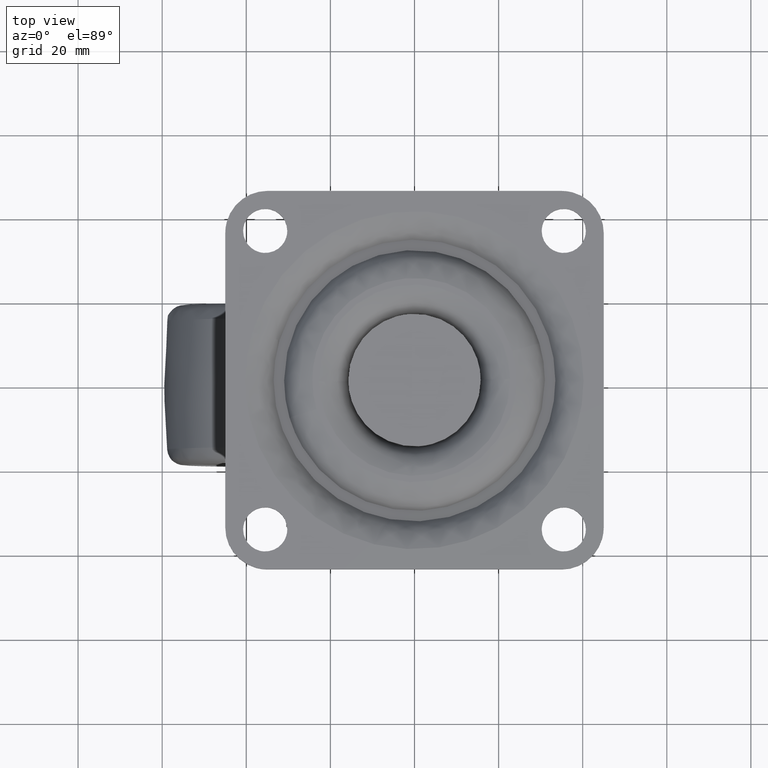
[diagram: clean part render]
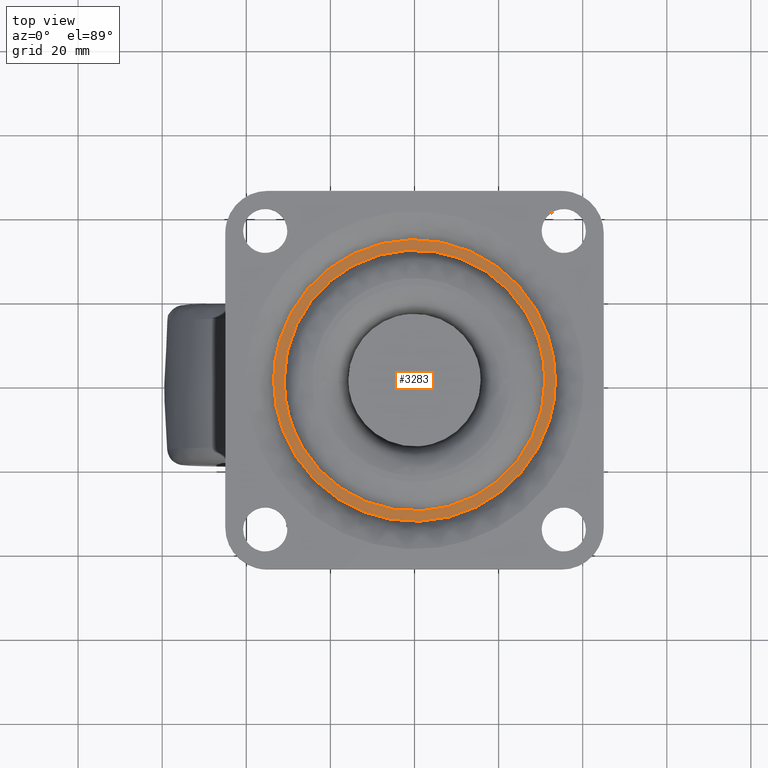
[diagram: same view with one face highlighted and labeled with its STEP entity id]
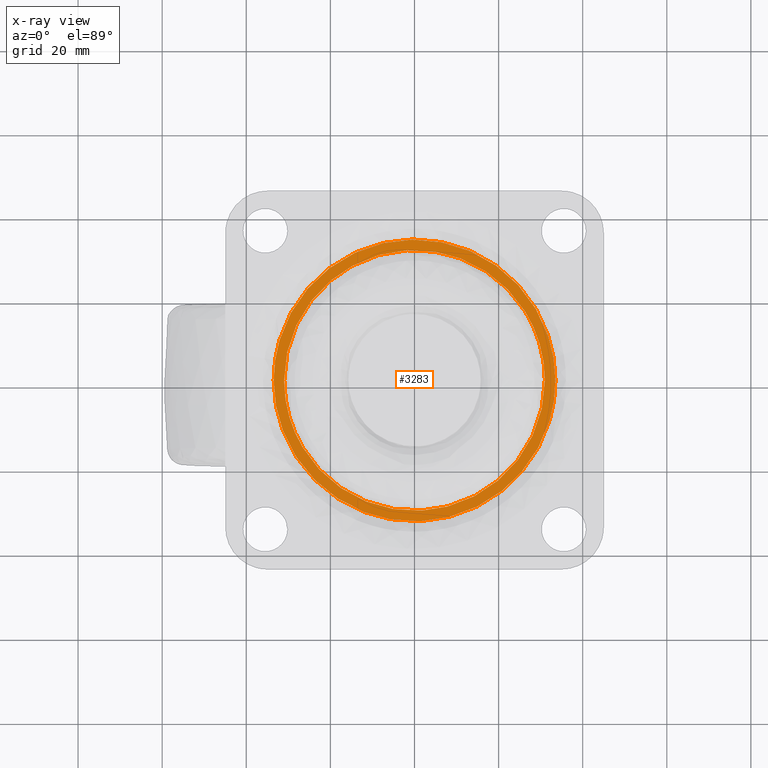
[diagram: x-ray of the same camera — body ghosted, the highlighted face saturated]
A machine part, top view. The second image highlights one B-rep face of the part: STEP entity #3283.
The next image is the same camera in x-ray: the body ghosted, the highlighted face saturated — about 0% of this face is hidden behind the body in this view.
In plain terms, the highlighted face is a freeform B-spline surface patch.
Its self-contained STEP definition (entity closure, byte-faithful):
#3093=CARTESIAN_POINT('',(36.846649870141000,-36.808252760960222,-5.000000000000100));
#3094=CARTESIAN_POINT('',(-36.846651667221039,-36.808252760960222,-5.000000000000100));
#3095=CARTESIAN_POINT('',(36.846649870141000,36.808250963883367,-5.000000000000100));
#3096=CARTESIAN_POINT('',(-36.846651667221039,36.808250963883367,-5.000000000000100));
#3097=B_SPLINE_SURFACE_WITH_KNOTS('',1,1,((#3093,#3095),(#3094,#3096)),.UNSPECIFIED.,.F.,.F.,.U.,(2,2),(2,2),(0.0,73.693301537362032),(0.0,73.616503724843597),.UNSPECIFIED.);
#3098=CARTESIAN_POINT('',(32.110479932221573,-9.548145292803506,-4.999999999494990));
#3099=VERTEX_POINT('',#3098);
#3100=CARTESIAN_POINT('',(-33.500000000000000,0.0,-5.000000000000101));
#3101=VERTEX_POINT('',#3100);
#3102=CARTESIAN_POINT('',(32.110479932221573,-9.548145292803506,-4.999999999494990));
#3103=CARTESIAN_POINT('',(31.507832129050229,-11.575782569249929,-4.999999999497318));
#3104=CARTESIAN_POINT('',(30.010002624708150,-15.284282798870480,-4.999999999504504));
#3105=CARTESIAN_POINT('',(26.916022108440369,-20.197421637762758,-4.999999999522514));
#3106=CARTESIAN_POINT('',(23.682357038599740,-23.836969684851280,-4.999999999542793));
#3107=CARTESIAN_POINT('',(20.046494761285778,-26.966508278974850,-4.999999999566835));
#3108=CARTESIAN_POINT('',(16.332342103448742,-29.384011328257021,-4.999999999592089));
#3109=CARTESIAN_POINT('',(12.369465608069360,-31.211531452825810,-4.999999999620103));
#3110=CARTESIAN_POINT('',(8.168333762591850,-32.594118802477752,-4.999999999650107));
#3111=CARTESIAN_POINT('',(3.994858478149984,-33.371749208753158,-4.999999999680880));
#3112=CARTESIAN_POINT('',(-0.113516375176753,-33.556197074703071,-4.999999999711571));
#3113=CARTESIAN_POINT('',(-4.093049057741790,-33.335753644083532,-4.999999999741833));
#3114=CARTESIAN_POINT('',(-8.023829680532243,-32.628826021847253,-4.999999999772240));
#3115=CARTESIAN_POINT('',(-11.582345720838530,-31.482314398893909,-4.999999999800323));
#3116=CARTESIAN_POINT('',(-15.078677295233151,-30.000923687580851,-4.999999999828312));
#3117=CARTESIAN_POINT('',(-18.229280450158161,-28.217807383862979,-4.999999999854016));
#3118=CARTESIAN_POINT('',(-21.319289150373312,-25.901780978047341,-4.999999999879855));
#3119=CARTESIAN_POINT('',(-24.183473067905840,-23.312431136521472,-4.999999999904286));
#3120=CARTESIAN_POINT('',(-26.869837151554911,-20.189282375150061,-4.999999999927968));
#3121=CARTESIAN_POINT('',(-29.194114285050460,-16.571399275980930,-4.999999999949460));
#3122=CARTESIAN_POINT('',(-30.769514551688150,-13.388790387616231,-4.999999999964826));
#3123=CARTESIAN_POINT('',(-31.952286850525091,-10.240275737748590,-4.999999999977202));
#3124=CARTESIAN_POINT('',(-33.129578039818263,-5.847968152068157,-4.999999999990891));
#3125=CARTESIAN_POINT('',(-33.500440018267682,-2.364165370366678,-4.999999999997512));
#3126=CARTESIAN_POINT('',(-33.500000000000000,0.0,-5.000000000000101));
#3127=B_SPLINE_CURVE_WITH_KNOTS('',3,(#3102,#3103,#3104,#3105,#3106,#3107,#3108,#3109,#3110,#3111,#3112,#3113,#3114,#3115,#3116,#3117,#3118,#3119,#3120,#3121,#3122,#3123,#3124,#3125,#3126),.UNSPECIFIED.,.F.,.U.,(4,1,1,1,1,1,1,1,1,1,1,1,1,1,1,1,1,1,1,1,1,1,4),(0.000000077171080,6.345844059929249,11.945122446728501,17.357780441196599,20.903993992299458,26.316643845093861,30.609424321345202,33.969035353324692,39.568320014856319,43.301032191127817,46.287401958636117,51.513342544129912,55.246240902234419,57.485960822470318,62.898605486857178,66.071531257671793,69.057820083283701,74.470466493982670,78.389964583369533,81.936206277014051,85.109118628885966,88.468715613678867,95.561088930573177),.UNSPECIFIED.);
#3128=EDGE_CURVE('',#3099,#3101,#3127,.T.);
#3129=ORIENTED_EDGE('',*,*,#3128,.F.);
#3130=CARTESIAN_POINT('',(33.500000000000000,0.0,-5.000000000000100));
#3131=VERTEX_POINT('',#3130);
#3132=CARTESIAN_POINT('',(33.500000000000000,0.0,-5.000000000000100));
#3133=CARTESIAN_POINT('',(33.500000000072177,-4.875179508517898,-4.999999999747545));
#3134=CARTESIAN_POINT('',(32.110479932221565,-9.548145292803506,-4.999999999494990));
#3142=(BOUNDED_CURVE()B_SPLINE_CURVE(2,(#3132,#3133,#3134),.UNSPECIFIED.,.F.,.U.)B_SPLINE_CURVE_WITH_KNOTS((3,3),(0.500000000000000,0.548526662064572),.UNSPECIFIED.)CURVE()GEOMETRIC_REPRESENTATION_ITEM()RATIONAL_B_SPLINE_CURVE((1.0,0.943147478998539,0.908365862590333))REPRESENTATION_ITEM(''));
#3143=EDGE_CURVE('',#3131,#3099,#3142,.T.);
#3144=ORIENTED_EDGE('',*,*,#3143,.F.);
#3145=CARTESIAN_POINT('',(-32.110479932221573,9.548145292803511,-4.999999999494991));
#3146=VERTEX_POINT('',#3145);
#3147=CARTESIAN_POINT('',(-32.110479932221573,9.548145292803511,-4.999999999494991));
#3148=CARTESIAN_POINT('',(-31.738133893350629,10.800459673791130,-4.999999999496425));
#3149=CARTESIAN_POINT('',(-30.846638075861339,13.261425034208511,-4.999999999500449));
#3150=CARTESIAN_POINT('',(-28.808642347303561,17.328843613683109,-4.999999999511345));
#3151=CARTESIAN_POINT('',(-26.449695740863120,20.708439078892241,-4.999999999525432));
#3152=CARTESIAN_POINT('',(-23.611279530803650,23.849860007869911,-4.999999999543372));
#3153=CARTESIAN_POINT('',(-20.831435665591439,26.352651969110848,-4.999999999561603));
#3154=CARTESIAN_POINT('',(-17.600649826385531,28.585957757351309,-4.999999999583428));
#3155=CARTESIAN_POINT('',(-14.583607922232790,30.208411679150618,-4.999999999604506));
#3156=CARTESIAN_POINT('',(-11.320429308719270,31.604563465398911,-4.999999999627482));
#3157=CARTESIAN_POINT('',(-7.081039823584592,32.882952406373917,-4.999999999658120));
#3158=CARTESIAN_POINT('',(-2.379520584038597,33.530308849729039,-4.999999999692806));
#3159=CARTESIAN_POINT('',(2.480655292480103,33.504850219303457,-4.999999999729488));
#3160=CARTESIAN_POINT('',(7.116619826026851,32.869779561505268,-4.999999999765155));
#3161=CARTESIAN_POINT('',(11.662138894076190,31.516442930466120,-4.999999999800830));
#3162=CARTESIAN_POINT('',(15.351137229620621,29.842870909987500,-4.999999999830628));
#3163=CARTESIAN_POINT('',(18.469529237208771,28.020173917686439,-4.999999999855842));
#3164=CARTESIAN_POINT('',(21.939196405269939,25.479941727195001,-4.999999999885417));
#3165=CARTESIAN_POINT('',(25.315088096999450,22.142561565258781,-4.999999999913856));
#3166=CARTESIAN_POINT('',(28.247985631779851,18.186034635108399,-4.999999999940801));
#3167=CARTESIAN_POINT('',(30.549068106978361,14.043340064746090,-4.999999999962256));
#3168=CARTESIAN_POINT('',(32.107510057305433,9.894773304407034,-4.999999999978815));
#3169=CARTESIAN_POINT('',(33.221827789717047,5.101472674735708,-4.999999999992392));
#3170=CARTESIAN_POINT('',(33.500207969958957,1.990851227812985,-4.999999999997917));
#3171=CARTESIAN_POINT('',(33.500000000000000,0.0,-5.000000000000100));
#3172=B_SPLINE_CURVE_WITH_KNOTS('',3,(#3147,#3148,#3149,#3150,#3151,#3152,#3153,#3154,#3155,#3156,#3157,#3158,#3159,#3160,#3161,#3162,#3163,#3164,#3165,#3166,#3167,#3168,#3169,#3170,#3171),.UNSPECIFIED.,.F.,.U.,(4,1,1,1,1,1,1,1,1,1,1,1,1,1,1,1,1,1,1,1,1,1,4),(0.000000077160919,3.919491631081812,7.838995039964900,13.624912598592230,16.237921291382278,20.530718097351240,24.823493365762900,27.996427661298679,30.796079590931850,35.462135230934578,41.248062843504911,44.980823098908267,50.020193066817939,55.246240902230483,59.165738392891562,62.152036486182951,66.071531257670301,72.044106738695007,76.336912015711022,80.816315009477350,86.228967033420787,89.588577826054760,95.561088930573135),.UNSPECIFIED.);
#3173=EDGE_CURVE('',#3146,#3131,#3172,.T.);
#3174=ORIENTED_EDGE('',*,*,#3173,.F.);
#3175=CARTESIAN_POINT('',(-33.500000000000000,0.0,-5.000000000000101));
#3176=CARTESIAN_POINT('',(-33.500000000072177,4.875179508517900,-4.999999999747547));
#3177=CARTESIAN_POINT('',(-32.110479932221565,9.548145292803511,-4.999999999494991));
#3185=(BOUNDED_CURVE()B_SPLINE_CURVE(2,(#3175,#3176,#3177),.UNSPECIFIED.,.F.,.U.)B_SPLINE_CURVE_WITH_KNOTS((3,3),(0.0,0.048526662064572),.UNSPECIFIED.)CURVE()GEOMETRIC_REPRESENTATION_ITEM()RATIONAL_B_SPLINE_CURVE((1.0,0.943147478998539,0.908365862590333))REPRESENTATION_ITEM(''));
#3186=EDGE_CURVE('',#3101,#3146,#3185,.T.);
#3187=ORIENTED_EDGE('',*,*,#3186,.F.);
#3188=EDGE_LOOP('',(#3129,#3144,#3174,#3187));
#3189=FACE_OUTER_BOUND('',#3188,.T.);
#3190=CARTESIAN_POINT('',(-31.0,0.0,-5.000000000000098));
#3191=VERTEX_POINT('',#3190);
#3192=CARTESIAN_POINT('',(29.714187335718361,8.835565573032186,-5.000008007609557));
#3193=VERTEX_POINT('',#3192);
#3194=CARTESIAN_POINT('',(-31.0,0.0,-5.000000000000098));
#3195=CARTESIAN_POINT('',(-31.000309323351932,2.072592027183866,-5.000000038915688));
#3196=CARTESIAN_POINT('',(-30.704411733989300,5.008606103601647,-5.000000132316345));
#3197=CARTESIAN_POINT('',(-29.736317335152389,8.924234240025713,-5.000000330947044));
#3198=CARTESIAN_POINT('',(-28.763920083293890,11.699029776980771,-5.000000508690802));
#3199=CARTESIAN_POINT('',(-27.396886073534230,14.622849917024940,-5.000000740204968));
#3200=CARTESIAN_POINT('',(-25.824551709075461,17.243349314515552,-5.000000992533461));
#3201=CARTESIAN_POINT('',(-23.826526392807811,19.922903420014499,-5.000001300952204));
#3202=CARTESIAN_POINT('',(-21.319596820878338,22.632609268320969,-5.000001675665011));
#3203=CARTESIAN_POINT('',(-18.249100061522370,25.169382751621988,-5.000002119915110));
#3204=CARTESIAN_POINT('',(-14.730169795950051,27.373541455283860,-5.000002615830916));
#3205=CARTESIAN_POINT('',(-11.584798286108910,28.821543119188309,-5.000003049287298));
#3206=CARTESIAN_POINT('',(-8.197133828333190,29.954688564057658,-5.000003508119248));
#3207=CARTESIAN_POINT('',(-4.987879742719592,30.671433331567631,-5.000003936081844));
#3208=CARTESIAN_POINT('',(-1.602895165822132,31.010797644529060,-5.000004379648252));
#3209=CARTESIAN_POINT('',(2.258222068313600,31.009621618763742,-5.000004878308548));
#3210=CARTESIAN_POINT('',(6.268404874784483,30.480124808253692,-5.000005386291529));
#3211=CARTESIAN_POINT('',(10.369162933371280,29.293262614073239,-5.000005893617118));
#3212=CARTESIAN_POINT('',(13.925236311957301,27.783554730182541,-5.000006324525923));
#3213=CARTESIAN_POINT('',(17.172418388118359,25.906820450184711,-5.000006708641402));
#3214=CARTESIAN_POINT('',(20.341630433578789,23.500495251493501,-5.000007072732701));
#3215=CARTESIAN_POINT('',(22.856742779629510,21.038265360957510,-5.000007351293004));
#3216=CARTESIAN_POINT('',(25.225451302321041,18.136422625822629,-5.000007602681754));
#3217=CARTESIAN_POINT('',(27.687363962490739,14.299084788502290,-5.000007848525142));
#3218=CARTESIAN_POINT('',(29.090946812923040,10.932646191535079,-5.000007966530786));
#3219=CARTESIAN_POINT('',(29.714187335718361,8.835565573032186,-5.000008007609557));
#3220=B_SPLINE_CURVE_WITH_KNOTS('',3,(#3194,#3195,#3196,#3197,#3198,#3199,#3200,#3201,#3202,#3203,#3204,#3205,#3206,#3207,#3208,#3209,#3210,#3211,#3212,#3213,#3214,#3215,#3216,#3217,#3218,#3219),.UNSPECIFIED.,.F.,.U.,(4,1,1,1,1,1,1,1,1,1,1,1,1,1,1,1,1,1,1,1,1,1,1,4),(0.000000022189198,6.217692955382390,8.808429014755021,12.089995408517710,15.026114075356210,18.480430072292680,21.243851659831378,25.043580776107440,29.534169190411721,33.161163205725792,37.479025465040451,39.897055243089042,43.869468962704431,47.323777770125432,50.087114249357860,55.441273354977739,59.413684779915563,62.867994133072933,67.013124918734491,70.640133682209097,74.785282964522480,77.548715923231327,81.866563731405748,88.429699895481036),.UNSPECIFIED.);
#3221=EDGE_CURVE('',#3191,#3193,#3220,.T.);
#3222=ORIENTED_EDGE('',*,*,#3221,.T.);
#3223=CARTESIAN_POINT('',(31.0,0.0,-5.000000000000100));
#3224=VERTEX_POINT('',#3223);
#3225=CARTESIAN_POINT('',(29.714187335718361,8.835565573032186,-5.000008007609557));
#3226=CARTESIAN_POINT('',(31.000001144177869,4.511343306557842,-5.000004003804827));
#3227=CARTESIAN_POINT('',(31.0,0.0,-5.000000000000100));
#3235=(BOUNDED_CURVE()B_SPLINE_CURVE(2,(#3225,#3226,#3227),.UNSPECIFIED.,.F.,.U.)B_SPLINE_CURVE_WITH_KNOTS((3,3),(0.451473512184718,0.500000000000000),.UNSPECIFIED.)CURVE()GEOMETRIC_REPRESENTATION_ITEM()RATIONAL_B_SPLINE_CURVE((0.908366112377919,0.943147683144281,1.0))REPRESENTATION_ITEM(''));
#3236=EDGE_CURVE('',#3193,#3224,#3235,.T.);
#3237=ORIENTED_EDGE('',*,*,#3236,.T.);
#3238=CARTESIAN_POINT('',(-29.714187335718361,-8.835565573032184,-5.000008007609557));
#3239=VERTEX_POINT('',#3238);
#3240=CARTESIAN_POINT('',(31.0,0.0,-5.000000000000100));
#3241=CARTESIAN_POINT('',(31.000097979976250,-1.612001607126655,-5.000000030285947));
#3242=CARTESIAN_POINT('',(30.797442655699960,-4.202654802860815,-5.000000105152628));
#3243=CARTESIAN_POINT('',(29.936143500092470,-8.379855717405119,-5.000000294906597));
#3244=CARTESIAN_POINT('',(28.657879561557920,-12.093657906581610,-5.000000529803719));
#3245=CARTESIAN_POINT('',(26.974192523291080,-15.378849392212061,-5.000000809007322));
#3246=CARTESIAN_POINT('',(25.199242598522350,-18.141532061605869,-5.000001090177156));
#3247=CARTESIAN_POINT('',(22.982572226759501,-20.947796071898210,-5.000001429216477));
#3248=CARTESIAN_POINT('',(19.902734689209680,-23.908831006001218,-5.000001882647179));
#3249=CARTESIAN_POINT('',(16.663778256975391,-26.225304351545901,-5.000002344513970));
#3250=CARTESIAN_POINT('',(13.282067359558161,-28.089742781212820,-5.000002816321970));
#3251=CARTESIAN_POINT('',(9.487453227293297,-29.635807234618898,-5.000003335474442));
#3252=CARTESIAN_POINT('',(5.107526336419144,-30.691082210704590,-5.000003920998334));
#3253=CARTESIAN_POINT('',(0.222333905591706,-31.126058052740898,-5.000004560120908));
#3254=CARTESIAN_POINT('',(-4.448902846731879,-30.811730925713430,-5.000005157526481));
#3255=CARTESIAN_POINT('',(-8.498400541968472,-29.880509492816199,-5.000005663036464));
#3256=CARTESIAN_POINT('',(-11.651992881620540,-28.774089049845351,-5.000006049542849));
#3257=CARTESIAN_POINT('',(-14.796764065624000,-27.334446298955459,-5.000006428646829));
#3258=CARTESIAN_POINT('',(-18.428535375285460,-25.084288175967089,-5.000006855415219));
#3259=CARTESIAN_POINT('',(-21.755514223081740,-22.220569791796422,-5.000007231285918));
#3260=CARTESIAN_POINT('',(-24.389610502413490,-19.238817384633940,-5.000007515448885));
#3261=CARTESIAN_POINT('',(-26.410816990777629,-16.360251801436981,-5.000007722393598));
#3262=CARTESIAN_POINT('',(-28.283868062461149,-12.914927121232321,-5.000007899550196));
#3263=CARTESIAN_POINT('',(-29.271233826858008,-10.325547182986361,-5.000007978405513));
#3264=CARTESIAN_POINT('',(-29.714187335718361,-8.835565573032184,-5.000008007609557));
#3265=B_SPLINE_CURVE_WITH_KNOTS('',3,(#3240,#3241,#3242,#3243,#3244,#3245,#3246,#3247,#3248,#3249,#3250,#3251,#3252,#3253,#3254,#3255,#3256,#3257,#3258,#3259,#3260,#3261,#3262,#3263,#3264),.UNSPECIFIED.,.F.,.U.,(4,1,1,1,1,1,1,1,1,1,1,1,1,1,1,1,1,1,1,1,1,1,4),(0.000000022164329,4.835991747915543,7.772084913003326,12.780843143541020,16.580570506880779,18.825842411996788,22.625571646946469,27.288868139637149,31.606748632954972,34.542875537835123,38.860730443314146,43.869468962701433,48.014641582384883,53.541404859761222,57.859267717848141,60.449986459391781,63.558833463001420,68.222131100591668,73.230851281571120,76.685140947451998,80.139421635969811,83.766418175627905,88.429699895481036),.UNSPECIFIED.);
#3266=EDGE_CURVE('',#3224,#3239,#3265,.T.);
#3267=ORIENTED_EDGE('',*,*,#3266,.T.);
#3268=CARTESIAN_POINT('',(-29.714187335718361,-8.835565573032184,-5.000008007609557));
#3269=CARTESIAN_POINT('',(-31.000001144177869,-4.511343306557842,-5.000004003804827));
#3270=CARTESIAN_POINT('',(-31.0,0.0,-5.000000000000098));
#3278=(BOUNDED_CURVE()B_SPLINE_CURVE(2,(#3268,#3269,#3270),.UNSPECIFIED.,.F.,.U.)B_SPLINE_CURVE_WITH_KNOTS((3,3),(0.951473512184718,1.0),.UNSPECIFIED.)CURVE()GEOMETRIC_REPRESENTATION_ITEM()RATIONAL_B_SPLINE_CURVE((0.908366112377919,0.943147683144281,1.0))REPRESENTATION_ITEM(''));
#3279=EDGE_CURVE('',#3239,#3191,#3278,.T.);
#3280=ORIENTED_EDGE('',*,*,#3279,.T.);
#3281=EDGE_LOOP('',(#3222,#3237,#3267,#3280));
#3282=FACE_BOUND('',#3281,.T.);
#3283=ADVANCED_FACE('',(#3189,#3282),#3097,.F.);